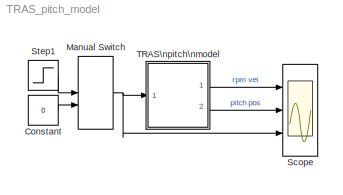
MODEL TRAS_pitch_model
KIND model
CONFIG PreLoadFcn = load tras_char
BLOCK [Constant] Constant
  SID = 1
  Value = 0
BLOCK [ManualSwitch] Manual Switch
  CurrentSetting = 0
  SID = 2
BLOCK [Scope] Scope
  DataFormat = StructureWithTime
  Floating = off
  MaxDataPoints = 50000
  NumInputPorts = 3
  Ports = [3]
  SID = 3
  SampleTime = 0
  ShowLegends = off
  YMax = 3250~1.75~1
  YMin = -250~-1.75~0
BLOCK [Step] Step1
  SID = 4
  SampleTime = 0
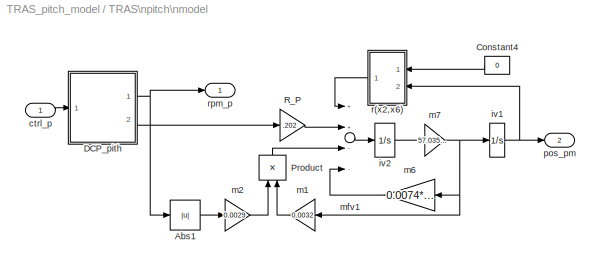
BLOCK [SubSystem] TRAS\npitch\nmodel
  FunctionWithSeparateData = off
  MaskHideContents = off
  MinAlgLoopOccurrences = off
  Opaque = off
  Ports = [1, 2]
  PropExecContextOutsideSubsystem = off
  RTWSystemCode = Auto
  RequestExecContextInheritance = off
  SID = 5
BLOCK [Abs] TRAS\npitch\nmodel/Abs1
  SID = 7
BLOCK [Constant] TRAS\npitch\nmodel/Constant4
  SID = 8
  Value = 0
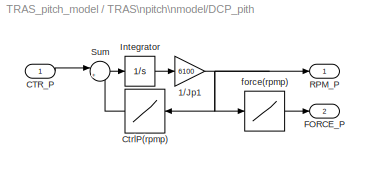
BLOCK [SubSystem] TRAS\npitch\nmodel/DCP_pith
  FunctionWithSeparateData = off
  MaskHideContents = off
  MinAlgLoopOccurrences = off
  Opaque = off
  Ports = [1, 2]
  PropExecContextOutsideSubsystem = off
  RTWSystemCode = Auto
  RequestExecContextInheritance = off
  SID = 9
BLOCK [Gain] TRAS\npitch\nmodel/DCP_pith/1//Jp1
  Gain = 6100
  SID = 11
  SaturateOnIntegerOverflow = off
BLOCK [Inport] TRAS\npitch\nmodel/DCP_pith/CTR_P
  IconDisplay = Port number
  SID = 10
BLOCK [Lookup] TRAS\npitch\nmodel/DCP_pith/CtrlP(rpmp)
  InputValues = rpm_p
  SID = 12
  Table = control_p
BLOCK [Outport] TRAS\npitch\nmodel/DCP_pith/FORCE_P
  IconDisplay = Port number
  Port = 2
  SID = 17
BLOCK [Integrator] TRAS\npitch\nmodel/DCP_pith/Integrator
  Ports = [1, 1]
  SID = 13
BLOCK [Outport] TRAS\npitch\nmodel/DCP_pith/RPM_P
  IconDisplay = Port number
  SID = 16
BLOCK [Sum] TRAS\npitch\nmodel/DCP_pith/Sum
  IconShape = round
  Inputs = |+-
  Ports = [2, 1]
  SID = 14
BLOCK [Lookup] TRAS\npitch\nmodel/DCP_pith/force(rpmp)
  InputValues = rpm_p
  SID = 15
  Table = force_p
BLOCK [Product] TRAS\npitch\nmodel/Product
  InputSameDT = off
  Ports = [2, 1]
  RndMeth = Floor
  SID = 18
BLOCK [Gain] TRAS\npitch\nmodel/R_P
  Gain = .202
  SID = 19
  SaturateOnIntegerOverflow = off
BLOCK [Inport] TRAS\npitch\nmodel/ctrl_p
  IconDisplay = Port number
  SID = 6
BLOCK [Integrator] TRAS\npitch\nmodel/iv1
  LimitOutput = on
  LowerSaturationLimit = -pi/2
  Ports = [1, 1]
  SID = 20
  UpperSaturationLimit = pi/2
BLOCK [Integrator] TRAS\npitch\nmodel/iv2
  InitialCondition = -.1
  LowerSaturationLimit = -pi
  Ports = [1, 1]
  SID = 21
  UpperSaturationLimit = pi
BLOCK [Gain] TRAS\npitch\nmodel/m1
  Gain = 0.0032
  SID = 22
BLOCK [Gain] TRAS\npitch\nmodel/m2
  Gain = 0.0029
  SID = 23
BLOCK [Gain] TRAS\npitch\nmodel/m6
  Gain = 0.0074*1.7175
  SID = 24
  SaturateOnIntegerOverflow = off
BLOCK [Gain] TRAS\npitch\nmodel/m7
  Gain = 57.0357*0.5833
  SID = 25
BLOCK [Sum] TRAS\npitch\nmodel/mfv1
  Inputs = ++--
  Ports = [4, 1]
  SID = 26
BLOCK [Outport] TRAS\npitch\nmodel/pos_pm
  IconDisplay = Port number
  Port = 2
  SID = 36
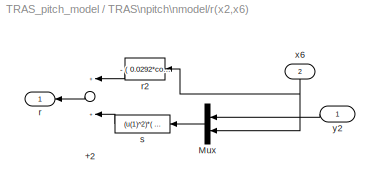
BLOCK [SubSystem] TRAS\npitch\nmodel/r(x2,x6)
  FunctionWithSeparateData = off
  MaskHideContents = off
  MinAlgLoopOccurrences = off
  Opaque = off
  Ports = [2, 1]
  PropExecContextOutsideSubsystem = off
  RTWSystemCode = Auto
  RequestExecContextInheritance = off
  SID = 27
BLOCK [Sum] TRAS\npitch\nmodel/r(x2,x6)/+2
  Ports = [2, 1]
  SID = 30
BLOCK [Mux] TRAS\npitch\nmodel/r(x2,x6)/Mux
  DisplayOption = bar
  Inputs = 2
  Ports = [2, 1]
  SID = 31
BLOCK [Outport] TRAS\npitch\nmodel/r(x2,x6)/r
  IconDisplay = Port number
  SID = 34
BLOCK [Fcn] TRAS\npitch\nmodel/r(x2,x6)/r2
  Expr = - ( 0.0292*cos(u)+ 0.0546*sin(u))*1.7143
  SID = 32
BLOCK [Fcn] TRAS\npitch\nmodel/r(x2,x6)/s
  Expr = (u(1)^2)*(   -1.40920355960000 *sin(u(2))*cos(u(2)))
  SID = 33
BLOCK [Inport] TRAS\npitch\nmodel/r(x2,x6)/x6
  IconDisplay = Port number
  Port = 2
  SID = 29
BLOCK [Inport] TRAS\npitch\nmodel/r(x2,x6)/y2
  IconDisplay = Port number
  SID = 28
BLOCK [Outport] TRAS\npitch\nmodel/rpm_p
  IconDisplay = Port number
  SID = 35
LINE Constant:1 -> Manual Switch:2
NET Manual Switch:1 -> Scope:3, TRAS\npitch\nmodel:1
LINE Step1:1 -> Manual Switch:1
LINE TRAS\npitch\nmodel/Abs1:1 -> TRAS\npitch\nmodel/m2:1
LINE TRAS\npitch\nmodel/Constant4:1 -> TRAS\npitch\nmodel/r(x2,x6):1
NET TRAS\npitch\nmodel/DCP_pith/1//Jp1:1 -> TRAS\npitch\nmodel/DCP_pith/CtrlP(rpmp):1, TRAS\npitch\nmodel/DCP_pith/RPM_P:1, TRAS\npitch\nmodel/DCP_pith/force(rpmp):1
LINE TRAS\npitch\nmodel/DCP_pith/CTR_P:1 -> TRAS\npitch\nmodel/DCP_pith/Sum:1
LINE TRAS\npitch\nmodel/DCP_pith/CtrlP(rpmp):1 -> TRAS\npitch\nmodel/DCP_pith/Sum:2
LINE TRAS\npitch\nmodel/DCP_pith/Integrator:1 -> TRAS\npitch\nmodel/DCP_pith/1//Jp1:1
LINE TRAS\npitch\nmodel/DCP_pith/Sum:1 -> TRAS\npitch\nmodel/DCP_pith/Integrator:1
LINE TRAS\npitch\nmodel/DCP_pith/force(rpmp):1 -> TRAS\npitch\nmodel/DCP_pith/FORCE_P:1
NET TRAS\npitch\nmodel/DCP_pith:1 -> TRAS\npitch\nmodel/Abs1:1, TRAS\npitch\nmodel/rpm_p:1
LINE TRAS\npitch\nmodel/DCP_pith:2 -> TRAS\npitch\nmodel/R_P:1
LINE TRAS\npitch\nmodel/Product:1 -> TRAS\npitch\nmodel/mfv1:3
LINE TRAS\npitch\nmodel/R_P:1 -> TRAS\npitch\nmodel/mfv1:2
LINE TRAS\npitch\nmodel/ctrl_p:1 -> TRAS\npitch\nmodel/DCP_pith:1
NET TRAS\npitch\nmodel/iv1:1 -> TRAS\npitch\nmodel/pos_pm:1, TRAS\npitch\nmodel/r(x2,x6):2
LINE TRAS\npitch\nmodel/iv2:1 -> TRAS\npitch\nmodel/m7:1
LINE TRAS\npitch\nmodel/m1:1 -> TRAS\npitch\nmodel/Product:2
LINE TRAS\npitch\nmodel/m2:1 -> TRAS\npitch\nmodel/Product:1
LINE TRAS\npitch\nmodel/m6:1 -> TRAS\npitch\nmodel/mfv1:4
NET TRAS\npitch\nmodel/m7:1 -> TRAS\npitch\nmodel/iv1:1, TRAS\npitch\nmodel/m1:1, TRAS\npitch\nmodel/m6:1
LINE TRAS\npitch\nmodel/mfv1:1 -> TRAS\npitch\nmodel/iv2:1
LINE TRAS\npitch\nmodel/r(x2,x6)/+2:1 -> TRAS\npitch\nmodel/r(x2,x6)/r:1
LINE TRAS\npitch\nmodel/r(x2,x6)/Mux:1 -> TRAS\npitch\nmodel/r(x2,x6)/s:1
LINE TRAS\npitch\nmodel/r(x2,x6)/r2:1 -> TRAS\npitch\nmodel/r(x2,x6)/+2:1
LINE TRAS\npitch\nmodel/r(x2,x6)/s:1 -> TRAS\npitch\nmodel/r(x2,x6)/+2:2
NET TRAS\npitch\nmodel/r(x2,x6)/x6:1 -> TRAS\npitch\nmodel/r(x2,x6)/Mux:2, TRAS\npitch\nmodel/r(x2,x6)/r2:1
LINE TRAS\npitch\nmodel/r(x2,x6)/y2:1 -> TRAS\npitch\nmodel/r(x2,x6)/Mux:1
LINE TRAS\npitch\nmodel/r(x2,x6):1 -> TRAS\npitch\nmodel/mfv1:1
LINE TRAS\npitch\nmodel:1 -> Scope:1
LINE TRAS\npitch\nmodel:2 -> Scope:2
note: NET lines group one-source signal fan-out (src -> all destinations, sorted); 1:1 wires keep LINE
